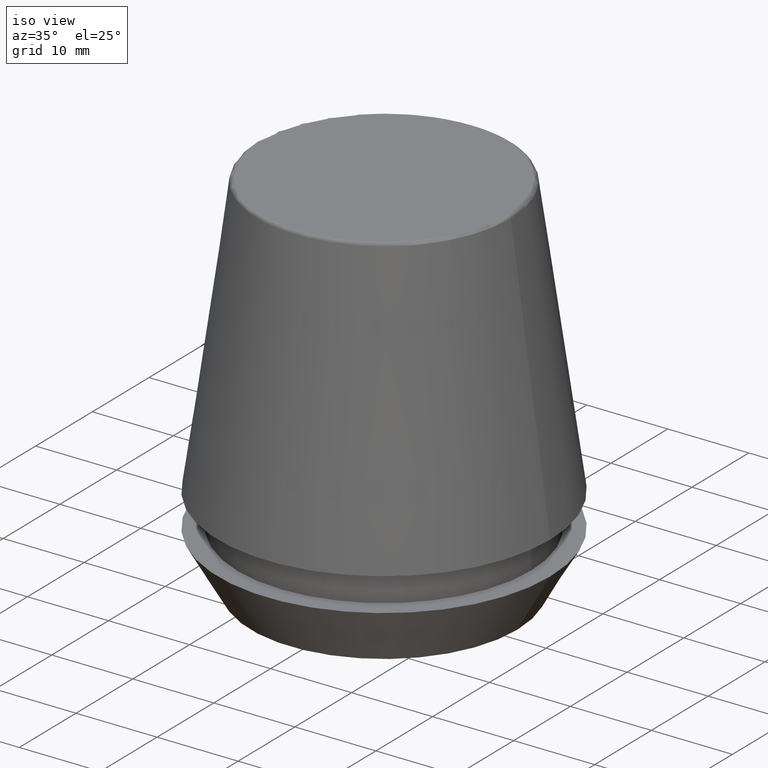
[diagram: clean part render]
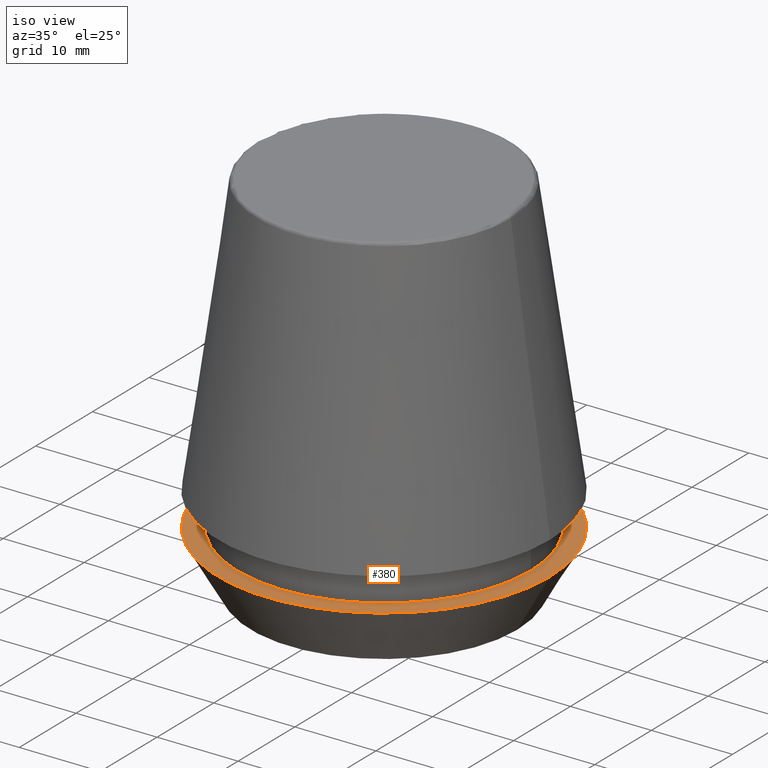
[diagram: same view with one face highlighted and labeled with its STEP entity id]
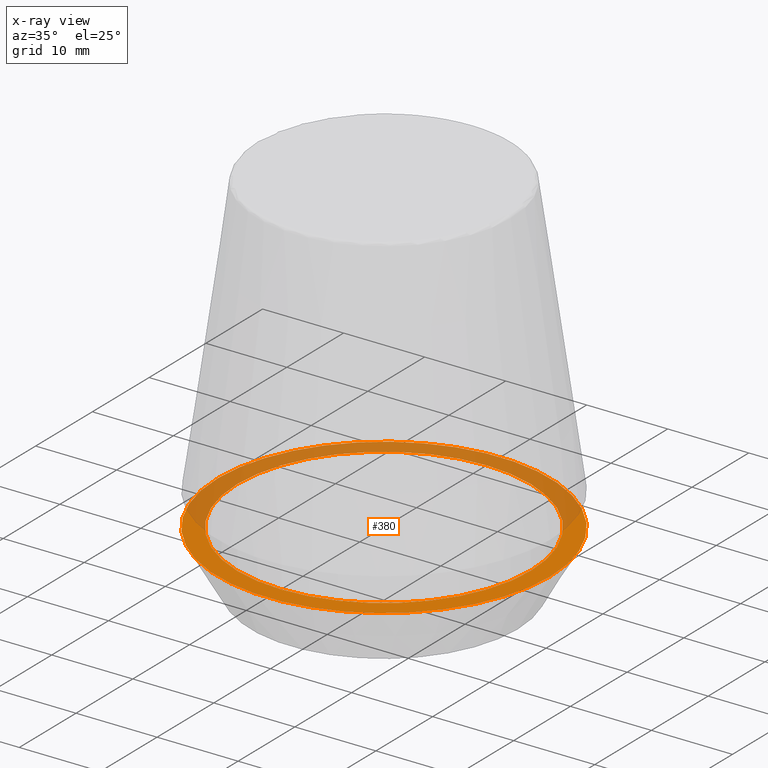
[diagram: x-ray of the same camera — body ghosted, the highlighted face saturated]
A machine part, iso view. The second image highlights one B-rep face of the part: STEP entity #380.
The next image is the same camera in x-ray: the body ghosted, the highlighted face saturated — about 47% of this face is hidden behind the body in this view.
In plain terms, the highlighted planar face has unit normal (0, 0, -1).
Its self-contained STEP definition (entity closure, byte-faithful):
#4 = AXIS2_PLACEMENT_3D ( 'NONE', #329, #192, #379 ) ;
#22 = ORIENTED_EDGE ( 'NONE', *, *, #167, .F. ) ;
#26 = CARTESIAN_POINT ( 'NONE',  ( 0.0000000000000000000, 0.0000000000000000000, 7.000000000000006200 ) ) ;
#38 = VERTEX_POINT ( 'NONE', #108 ) ;
#39 = AXIS2_PLACEMENT_3D ( 'NONE', #270, #362, #316 ) ;
#65 = AXIS2_PLACEMENT_3D ( 'NONE', #112, #122, #176 ) ;
#85 = ORIENTED_EDGE ( 'NONE', *, *, #164, .T. ) ;
#95 = DIRECTION ( 'NONE',  ( 1.000000000000000000, 0.0000000000000000000, 0.0000000000000000000 ) ) ;
#97 = EDGE_LOOP ( 'NONE', ( #85, #110 ) ) ;
#108 = CARTESIAN_POINT ( 'NONE',  ( -20.50000000000000000, 2.510525938252074100E-015, 7.000000000000006200 ) ) ;
#110 = ORIENTED_EDGE ( 'NONE', *, *, #147, .T. ) ;
#112 = CARTESIAN_POINT ( 'NONE',  ( 0.0000000000000000000, 20.50000000000000000, 7.000000000000002700 ) ) ;
#114 = VERTEX_POINT ( 'NONE', #265 ) ;
#122 = DIRECTION ( 'NONE',  ( 0.0000000000000000000, 0.0000000000000000000, -1.000000000000000000 ) ) ;
#126 = PLANE ( 'NONE',  #65 ) ;
#133 = EDGE_LOOP ( 'NONE', ( #282, #22 ) ) ;
#142 = DIRECTION ( 'NONE',  ( 1.000000000000000000, 0.0000000000000000000, 0.0000000000000000000 ) ) ;
#147 = EDGE_CURVE ( 'NONE', #38, #222, #157, .T. ) ;
#157 = CIRCLE ( 'NONE', #327, 20.50000000000000000 ) ;
#164 = EDGE_CURVE ( 'NONE', #222, #38, #324, .T. ) ;
#167 = EDGE_CURVE ( 'NONE', #114, #319, #170, .T. ) ;
#170 = CIRCLE ( 'NONE', #288, 18.10000000000000100 ) ;
#176 = DIRECTION ( 'NONE',  ( -1.000000000000000000, 0.0000000000000000000, -0.0000000000000000000 ) ) ;
#192 = DIRECTION ( 'NONE',  ( -0.0000000000000000000, -0.0000000000000000000, 1.000000000000000000 ) ) ;
#215 = FACE_BOUND ( 'NONE', #133, .T. ) ;
#222 = VERTEX_POINT ( 'NONE', #263 ) ;
#228 = DIRECTION ( 'NONE',  ( -0.0000000000000000000, -0.0000000000000000000, 1.000000000000000000 ) ) ;
#234 = FACE_OUTER_BOUND ( 'NONE', #97, .T. ) ;
#263 = CARTESIAN_POINT ( 'NONE',  ( 20.50000000000000000, 0.0000000000000000000, 7.000000000000006200 ) ) ;
#264 = DIRECTION ( 'NONE',  ( -0.0000000000000000000, -0.0000000000000000000, 1.000000000000000000 ) ) ;
#265 = CARTESIAN_POINT ( 'NONE',  ( -18.10000000000000100, 2.216610706456709600E-015, 6.999999999999999100 ) ) ;
#270 = CARTESIAN_POINT ( 'NONE',  ( 0.0000000000000000000, 0.0000000000000000000, 6.999999999999999100 ) ) ;
#282 = ORIENTED_EDGE ( 'NONE', *, *, #346, .F. ) ;
#288 = AXIS2_PLACEMENT_3D ( 'NONE', #328, #228, #95 ) ;
#316 = DIRECTION ( 'NONE',  ( 1.000000000000000000, 0.0000000000000000000, 0.0000000000000000000 ) ) ;
#318 = CIRCLE ( 'NONE', #39, 18.10000000000000100 ) ;
#319 = VERTEX_POINT ( 'NONE', #350 ) ;
#324 = CIRCLE ( 'NONE', #4, 20.50000000000000000 ) ;
#327 = AXIS2_PLACEMENT_3D ( 'NONE', #26, #264, #142 ) ;
#328 = CARTESIAN_POINT ( 'NONE',  ( 0.0000000000000000000, 0.0000000000000000000, 6.999999999999999100 ) ) ;
#329 = CARTESIAN_POINT ( 'NONE',  ( 0.0000000000000000000, 0.0000000000000000000, 7.000000000000006200 ) ) ;
#346 = EDGE_CURVE ( 'NONE', #319, #114, #318, .T. ) ;
#350 = CARTESIAN_POINT ( 'NONE',  ( 18.10000000000000100, 0.0000000000000000000, 6.999999999999999100 ) ) ;
#362 = DIRECTION ( 'NONE',  ( -0.0000000000000000000, -0.0000000000000000000, 1.000000000000000000 ) ) ;
#379 = DIRECTION ( 'NONE',  ( 1.000000000000000000, 0.0000000000000000000, 0.0000000000000000000 ) ) ;
#380 = ADVANCED_FACE ( 'NONE', ( #215, #234 ), #126, .F. ) ;